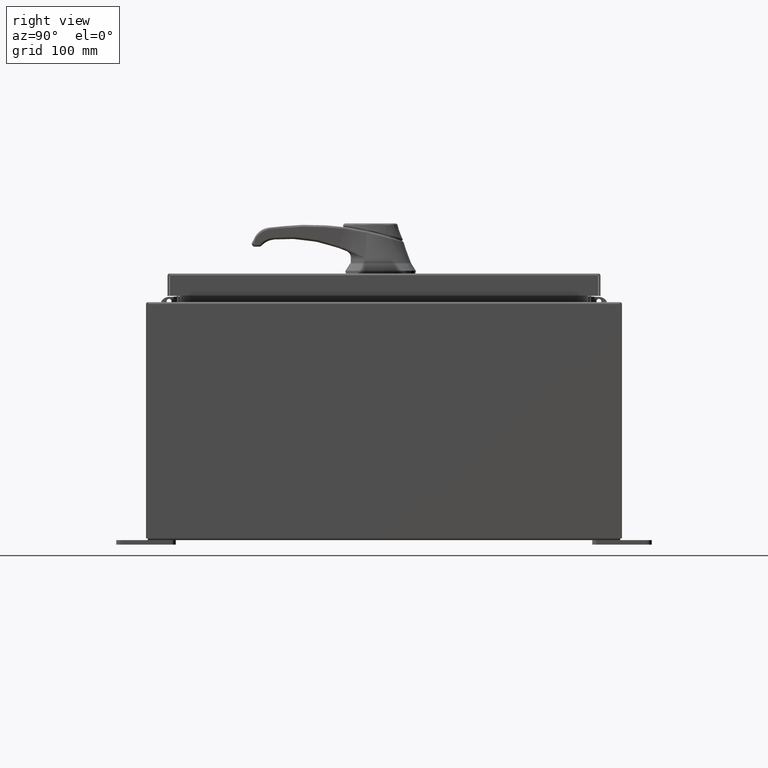
[diagram: clean part render]
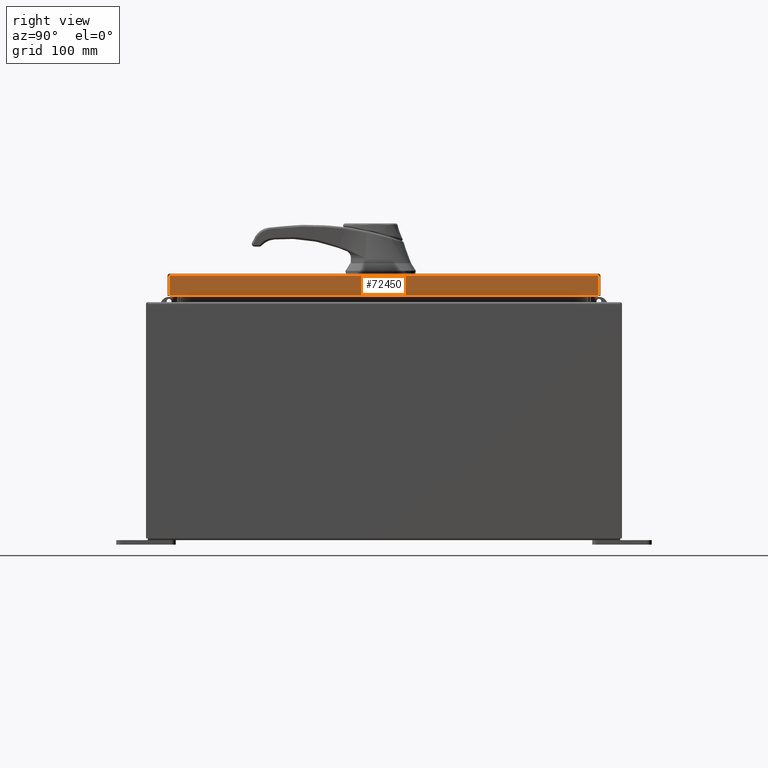
[diagram: same view with one face highlighted and labeled with its STEP entity id]
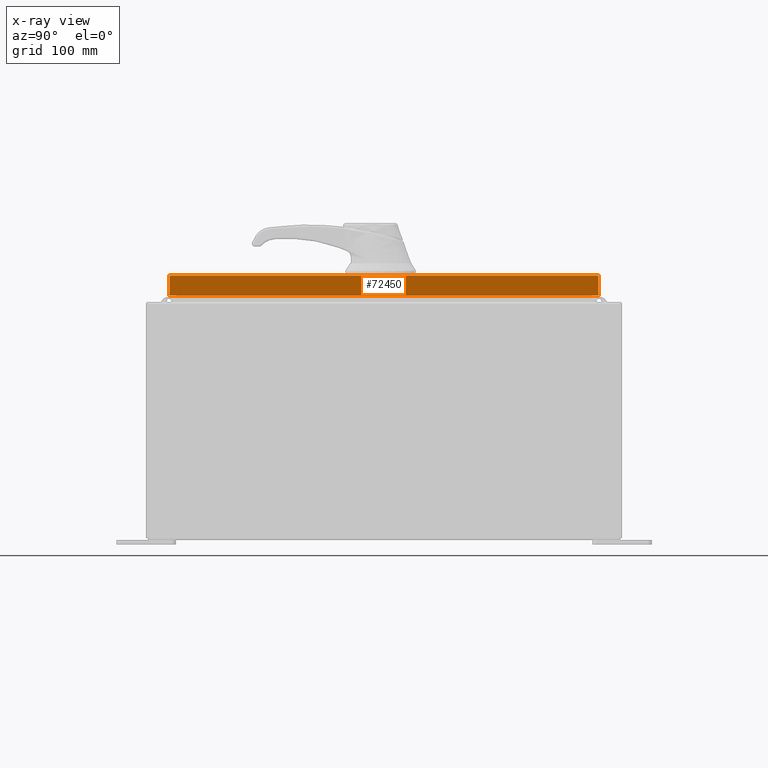
[diagram: x-ray of the same camera — body ghosted, the highlighted face saturated]
A machine part, right view. The second image highlights one B-rep face of the part: STEP entity #72450.
The next image is the same camera in x-ray: the body ghosted, the highlighted face saturated — about 0% of this face is hidden behind the body in this view.
In plain terms, the highlighted planar face has unit normal (1, 0, 0).
Its self-contained STEP definition (entity closure, byte-faithful):
#1082 = CARTESIAN_POINT ( 'NONE',  ( 7.078000000000005600, -9.093999999999999400, -0.9376999999999997600 ) ) ;
#6481 = LINE ( 'NONE', #77994, #94546 ) ;
#9454 = EDGE_CURVE ( 'NONE', #108619, #70946, #100312, .T. ) ;
#14506 = EDGE_CURVE ( 'NONE', #58873, #70946, #6481, .T. ) ;
#18066 = ORIENTED_EDGE ( 'NONE', *, *, #14506, .F. ) ;
#22085 = CARTESIAN_POINT ( 'NONE',  ( 7.078000000000005600, -9.005157864376261800, -0.9376999999999997600 ) ) ;
#23977 = ORIENTED_EDGE ( 'NONE', *, *, #27284, .T. ) ;
#27284 = EDGE_CURVE ( 'NONE', #93008, #108619, #37457, .T. ) ;
#29901 = CARTESIAN_POINT ( 'NONE',  ( 7.078000000000002100, 0.0000000000000000000, -0.08769999999999997200 ) ) ;
#31340 = CARTESIAN_POINT ( 'NONE',  ( 7.078000000000002100, 0.0000000000000000000, 2.714751599550960100E-014 ) ) ;
#33561 = CARTESIAN_POINT ( 'NONE',  ( 7.078000000000002100, 9.005157864376268900, 9.003019726912204800E-014 ) ) ;
#37457 = LINE ( 'NONE', #33561, #82788 ) ;
#39006 = CARTESIAN_POINT ( 'NONE',  ( 7.078000000000002100, 9.005157864376270600, -0.08769999999999997200 ) ) ;
#39928 = DIRECTION ( 'NONE',  ( 3.798629886902798700E-015, 0.0000000000000000000, -1.000000000000000000 ) ) ;
#44117 = DIRECTION ( 'NONE',  ( -3.798629886902798700E-015, -6.982962677686265900E-015, 1.000000000000000000 ) ) ;
#52080 = AXIS2_PLACEMENT_3D ( 'NONE', #31340, #90958, #39928 ) ;
#53720 = FACE_OUTER_BOUND ( 'NONE', #94209, .T. ) ;
#58873 = VERTEX_POINT ( 'NONE', #22085 ) ;
#59257 = CARTESIAN_POINT ( 'NONE',  ( 7.078000000000002100, -9.005157864376267100, -0.08769999999999997200 ) ) ;
#65762 = EDGE_CURVE ( 'NONE', #93008, #58873, #88995, .T. ) ;
#69876 = ORIENTED_EDGE ( 'NONE', *, *, #65762, .F. ) ;
#70946 = VERTEX_POINT ( 'NONE', #59257 ) ;
#72450 = ADVANCED_FACE ( 'NONE', ( #53720 ), #107805, .T. ) ;
#72715 = DIRECTION ( 'NONE',  ( 0.0000000000000000000, -1.000000000000000000, 0.0000000000000000000 ) ) ;
#72777 = CARTESIAN_POINT ( 'NONE',  ( 7.078000000000005600, 9.005157864376276000, -0.9376999999999997600 ) ) ;
#74908 = VECTOR ( 'NONE', #72715, 39.37007874015748100 ) ;
#77925 = DIRECTION ( 'NONE',  ( 0.0000000000000000000, -1.000000000000000000, 0.0000000000000000000 ) ) ;
#77994 = CARTESIAN_POINT ( 'NONE',  ( 7.078000000000002100, -9.005157864376267100, -0.07469999999999972500 ) ) ;
#82788 = VECTOR ( 'NONE', #93193, 39.37007874015748100 ) ;
#88995 = LINE ( 'NONE', #1082, #109058 ) ;
#90958 = DIRECTION ( 'NONE',  ( 1.000000000000000000, 0.0000000000000000000, 3.798629886902798700E-015 ) ) ;
#93008 = VERTEX_POINT ( 'NONE', #72777 ) ;
#93193 = DIRECTION ( 'NONE',  ( -3.798629886902798700E-015, -6.982962677686265900E-015, 1.000000000000000000 ) ) ;
#94209 = EDGE_LOOP ( 'NONE', ( #18066, #69876, #23977, #96039 ) ) ;
#94546 = VECTOR ( 'NONE', #44117, 39.37007874015748100 ) ;
#96039 = ORIENTED_EDGE ( 'NONE', *, *, #9454, .T. ) ;
#100312 = LINE ( 'NONE', #29901, #74908 ) ;
#107805 = PLANE ( 'NONE',  #52080 ) ;
#108619 = VERTEX_POINT ( 'NONE', #39006 ) ;
#109058 = VECTOR ( 'NONE', #77925, 39.37007874015748100 ) ;